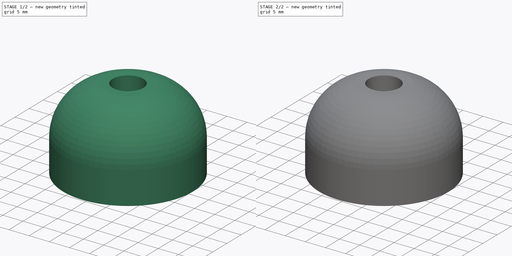
[diagram: build sequence overview — one tinted view per stage of 2, left to right]
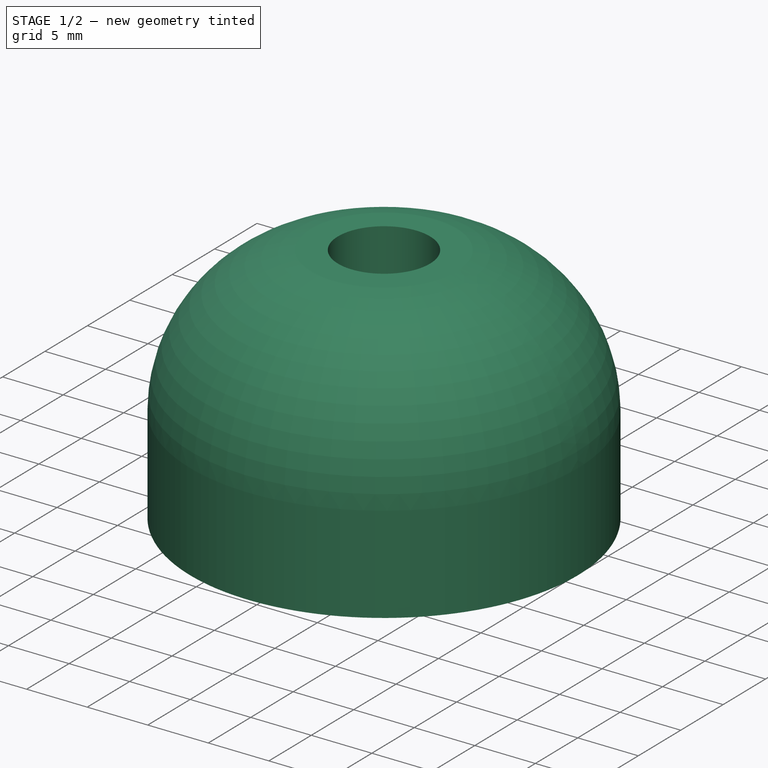
[diagram: stage 1 of 2 — iso view after this stage's code; geometry added in this stage tinted green]
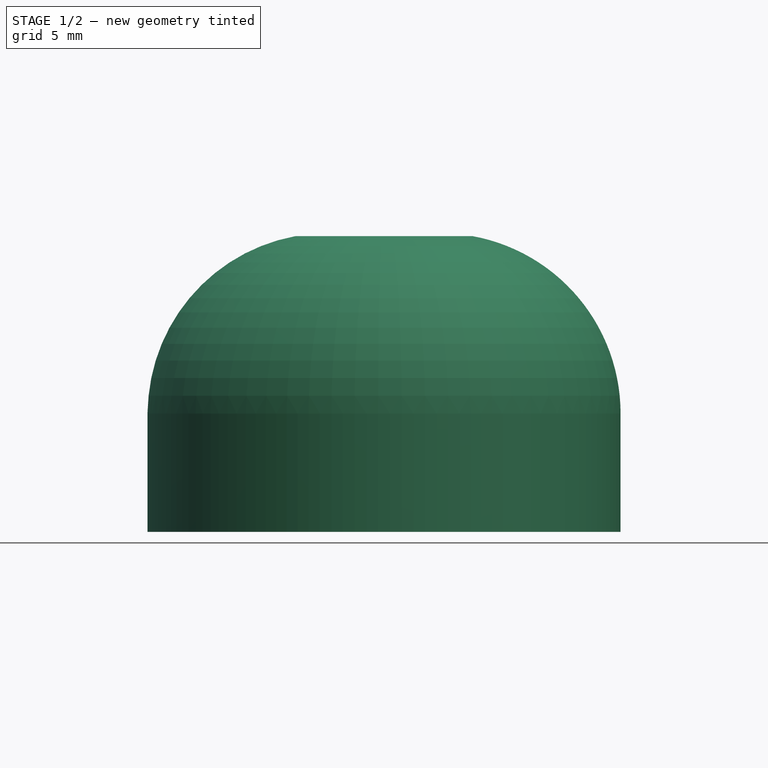
[diagram: stage 1 of 2 — front view after this stage's code; geometry added in this stage tinted green]
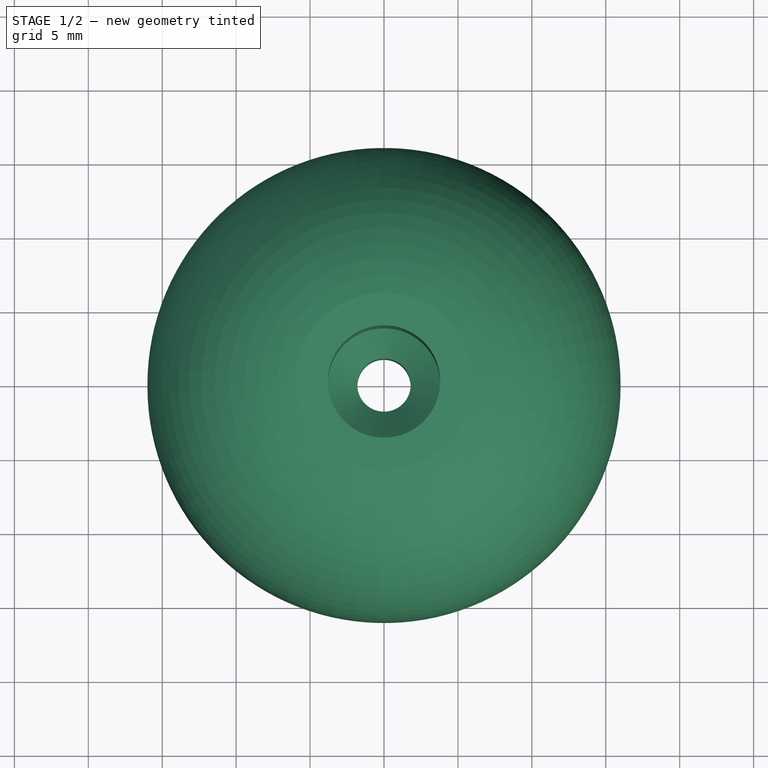
[diagram: stage 1 of 2 — top view after this stage's code; geometry added in this stage tinted green]
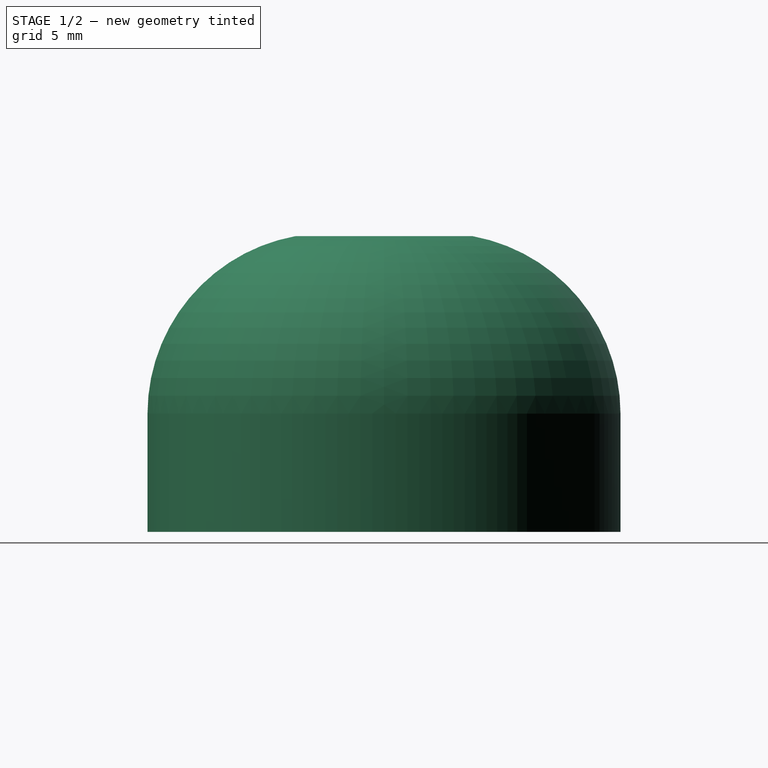
[diagram: stage 1 of 2 — right view after this stage's code; geometry added in this stage tinted green]
FCSTD DOCUMENT  (FreeCAD 0.18.4R)
Label: doorstop2
License: All rights reserved
LicenseURL: http://en.wikipedia.org/wiki/All_rights_reserved
objects: Sketcher::SketchObject×2, PartDesign::Revolution×1, PartDesign::Pad×1, PartDesign::PolarPattern×1, PartDesign::Body×1
note: 8 computed .brp shape members not serialized (recipe doc carries the construction recipe); baked Part::Feature solids carry a one-line shape summary decoded from their .brp

FEATURE [Sketcher::SketchObject] Sketch
  MapMode = 5
  Placement = pos=(0,0,0) rot=(1,0,0;1.5708rad)
  Support = -> [XZ_Plane]
  sketch-geometry (13):
    g0: LineSegment StartX=16 StartY=0 StartZ=0 EndX=16 EndY=8 EndZ=0
    g1: ArcOfCircle CenterX=3.8 CenterY=8 CenterZ=0 NormalX=0 NormalY=0 NormalZ=1 AngleXU=0 Radius=12.2 StartAngle=0 EndAngle=1.38948
    g2: LineSegment StartX=1.8 StartY=6 StartZ=0 EndX=3.8 EndY=8 EndZ=0
    g3: LineSegment StartX=3.8 StartY=8 StartZ=0 EndX=3.8 EndY=20 EndZ=0
    g4: LineSegment StartX=3.8 StartY=20 StartZ=0 EndX=6 EndY=20 EndZ=0
    g5: LineSegment StartX=1.8 StartY=6 StartZ=0 EndX=1.8 EndY=0 EndZ=0
    g6: LineSegment StartX=16 StartY=0 StartZ=0 EndX=14 EndY=0 EndZ=0
    g7: LineSegment StartX=14 StartY=0 StartZ=0 EndX=14 EndY=8 EndZ=0
    g8: LineSegment StartX=1.8 StartY=0 StartZ=0 EndX=3.8 EndY=0 EndZ=0
    g9: LineSegment StartX=3.8 StartY=0 StartZ=0 EndX=3.8 EndY=5.5 EndZ=0
    g10: LineSegment StartX=3.8 StartY=5.5 StartZ=0 EndX=5.5 EndY=7.2 EndZ=0
    g11: LineSegment StartX=5.5 StartY=7.2 StartZ=0 EndX=5.5 EndY=18 EndZ=0
    g12: ArcOfCircle CenterX=3.86765 CenterY=8 CenterZ=0 NormalX=0 NormalY=0 NormalZ=1 AngleXU=0 Radius=10.1324 StartAngle=0 EndAngle=1.40899
  constraints (40):
    c: Vertical(g0)
    c: Tangent(g0,g1) = -1.5708
    c: DistanceX(g-1,g0) = 16
    c: DistanceY(g0,g0) = 8
    c: Coincident(g2,g3)
    c: Vertical(g3)
    c: Coincident(g3,g4)
    c: Coincident(g4,g1)
    c: Horizontal(g4)
    c: DistanceX(g-1,g1) = 6
    c: DistanceX(g-1,g3) = 3.8
    c: Angle(g2) = 0.785398
    c: Coincident(g2,g5)
    c: PointOnObject(g5,g-1)
    c: Vertical(g5)
    c: DistanceX(g-1,g5) = 1.8
    c: DistanceY(g-1,g3) = 20
    c: DistanceY(g5,g5) = 6
    c: Coincident(g0,g6)
    c: PointOnObject(g6,g-1)
    c: Horizontal(g6)
    c: Coincident(g6,g7)
    c: Vertical(g7)
    c: Coincident(g5,g8)
    c: Horizontal(g8)
    c: Coincident(g8,g9)
    c: Vertical(g9)
    c: Coincident(g9,g10)
    c: Coincident(g10,g11)
    c: Vertical(g11)
    c: Coincident(g12,g11)
    c: Coincident(g12,g7)
    c: DistanceX(g8,g8) = 2
    c: DistanceX(g6,g6) = 2
    c: Angle(g10) = 0.785398
    c: DistanceY(g9,g9) = 5.5
    c: DistanceY(g-1,g11) = 18
    c: DistanceY(g7,g7) = 8
    c: DistanceX(g-1,g11) = 5.5
    c: Horizontal(g12,g7)
FEATURE [PartDesign::Revolution] Revolution
  Angle = 360
  Axis = (0,-2e-16,1)
  Base = (0,0,0)
  Placement = pos=(0,0,0) rot=(1,0,0;1.5708rad)
  Profile = -> Sketch
  ReferenceAxis = -> Sketch [V_Axis]
  Refine = true
  Reversed = true
FEATURE [Sketcher::SketchObject] Sketch001
  MapMode = 5
  Placement = pos=(0,0,0) rot=(1,0,0;1.5708rad)
  Support = -> [XZ_Plane]
  sketch-geometry (6):
    g0: LineSegment StartX=14.5 StartY=0 StartZ=0 EndX=14.5 EndY=8 EndZ=0
    g1: LineSegment StartX=3.5 StartY=0 StartZ=0 EndX=3.5 EndY=5.5 EndZ=0
    g2: LineSegment StartX=3.5 StartY=5.5 StartZ=0 EndX=5.5 EndY=7.5 EndZ=0
    g3: LineSegment StartX=5.5 StartY=7.5 StartZ=0 EndX=5.5 EndY=18.5 EndZ=0
    g4: ArcOfCircle CenterX=3.875 CenterY=8 CenterZ=0 NormalX=0 NormalY=0 NormalZ=1 AngleXU=0 Radius=10.625 StartAngle=0 EndAngle=1.41725
    g5: LineSegment StartX=3.5 StartY=0 StartZ=0 EndX=14.5 EndY=0 EndZ=0
  constraints (19):
    c: PointOnObject(g0,g-1)
    c: Vertical(g0)
    c: Vertical(g1)
    c: Coincident(g1,g2)
    c: Coincident(g2,g3)
    c: Vertical(g3)
    c: Coincident(g4,g3)
    c: Coincident(g4,g0)
    c: Angle(g2) = 0.785398
    c: DistanceY(g1,g1) = 5.5
    c: DistanceY(g-1,g3) = 18.5
    c: DistanceY(g0,g0) = 8
    c: DistanceX(g-1,g3) = 5.5
    c: Horizontal(g4,g0)
    c: Coincident(g5,g1)
    c: Coincident(g5,g0)
    c: Horizontal(g5)
    c: DistanceX(g5,g5) = 11
    c: DistanceX(g-1,g1) = 3.5
FEATURE [PartDesign::Pad] Pad
  BaseFeature = -> Revolution
  Length = 1.2
  Length2 = 100
  Midplane = true
  Placement = pos=(0,0,0) rot=(1,0,0;1.5708rad)
  Profile = -> Sketch001
  Refine = true
  Type = 0
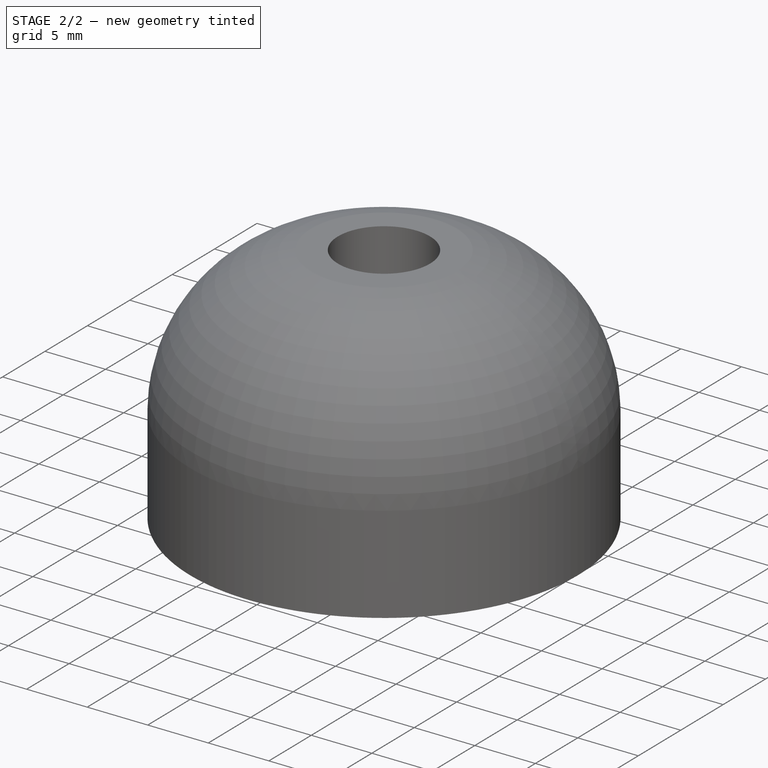
[diagram: stage 2 of 2 — iso view after this stage's code; geometry added in this stage tinted green]
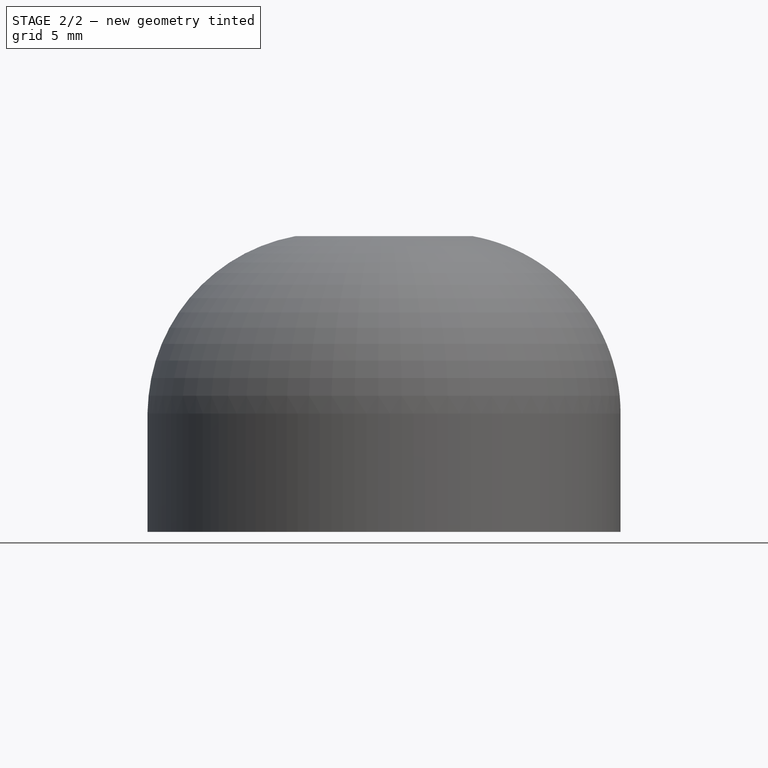
[diagram: stage 2 of 2 — front view after this stage's code; geometry added in this stage tinted green]
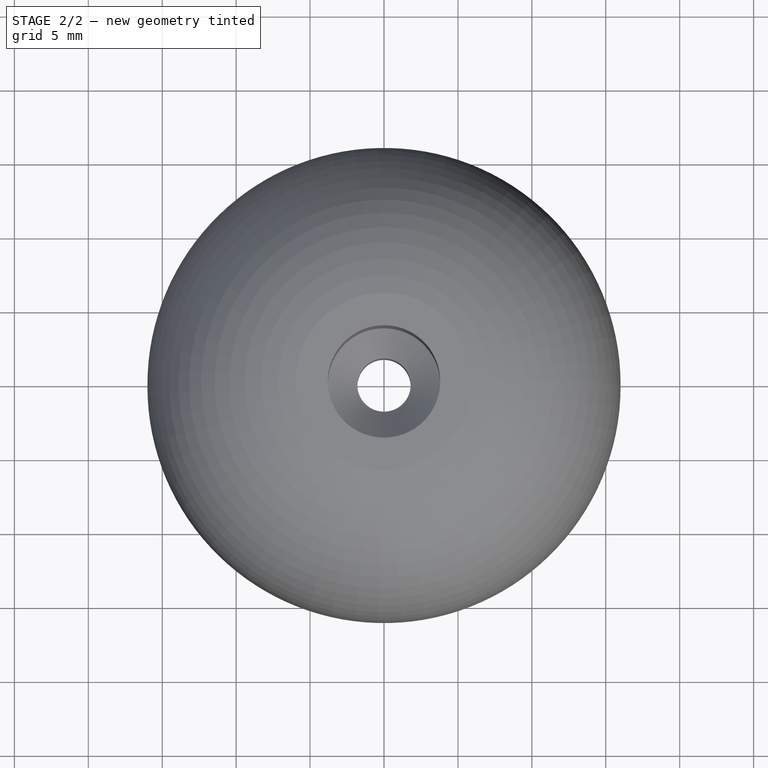
[diagram: stage 2 of 2 — top view after this stage's code; geometry added in this stage tinted green]
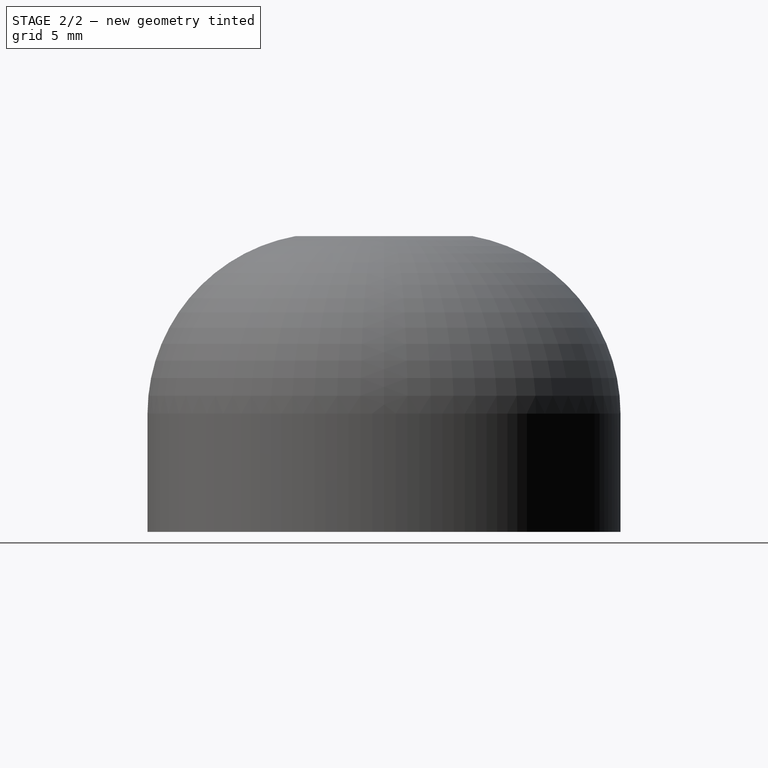
[diagram: stage 2 of 2 — right view after this stage's code; geometry added in this stage tinted green]
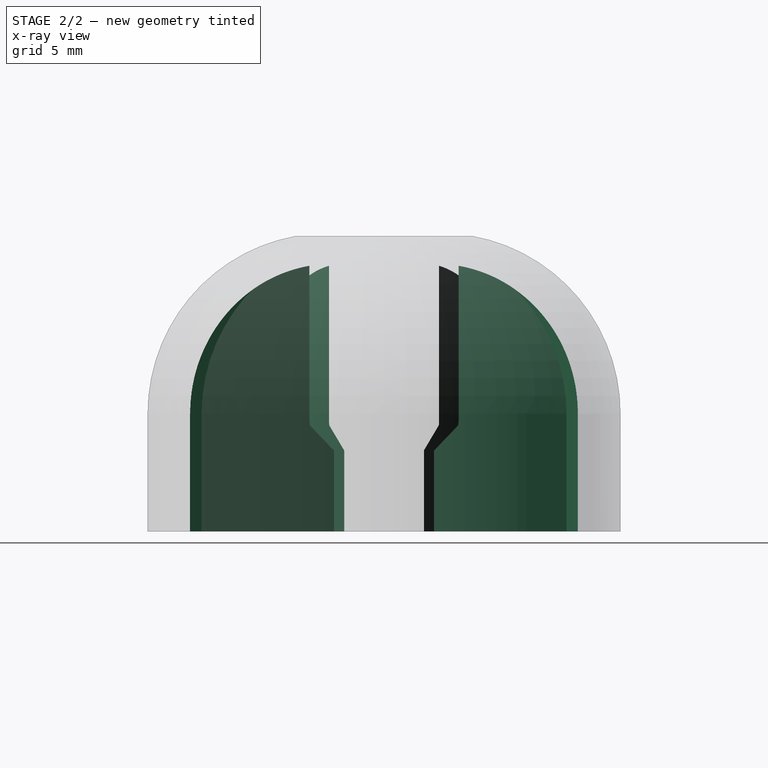
[diagram: stage 2 of 2 — x-ray composite at the right view; earlier geometry ghosted, this stage's added geometry solid]
FEATURE [PartDesign::PolarPattern] PolarPattern
  Angle = 360
  Axis = -> Z_Axis
  BaseFeature = -> Pad
  Occurrences = 5
  Originals = -> [Pad]
  Placement = pos=(0,0,0) rot=(1,0,0;1.5708rad)
  Refine = true
FEATURE [PartDesign::Body] Body
  Group = -> [Sketch,Revolution,Sketch001,Pad,PolarPattern]
  Origin = -> Origin
  Tip = -> PolarPattern
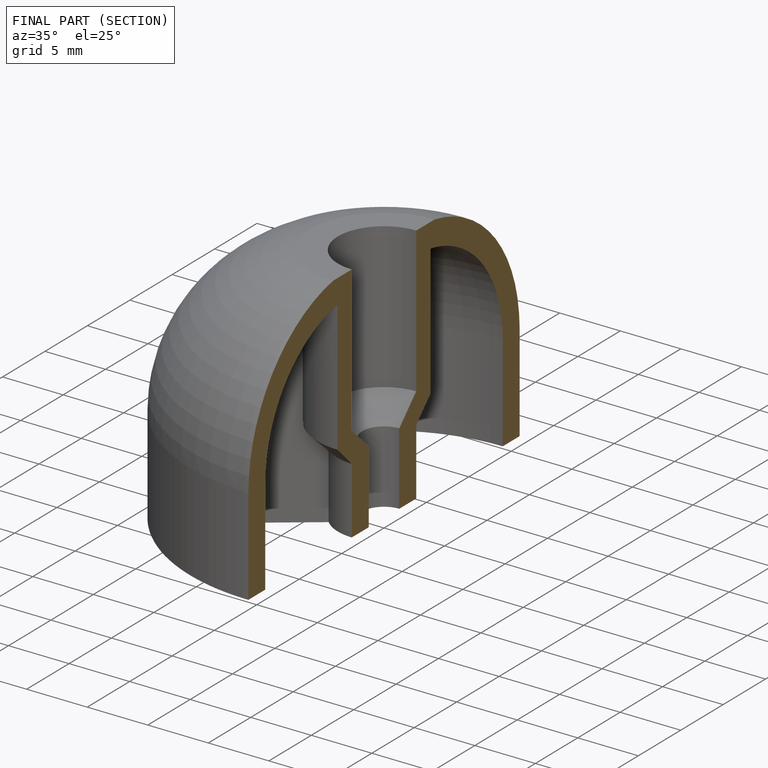
[diagram: finished part — half-section view (interior)]
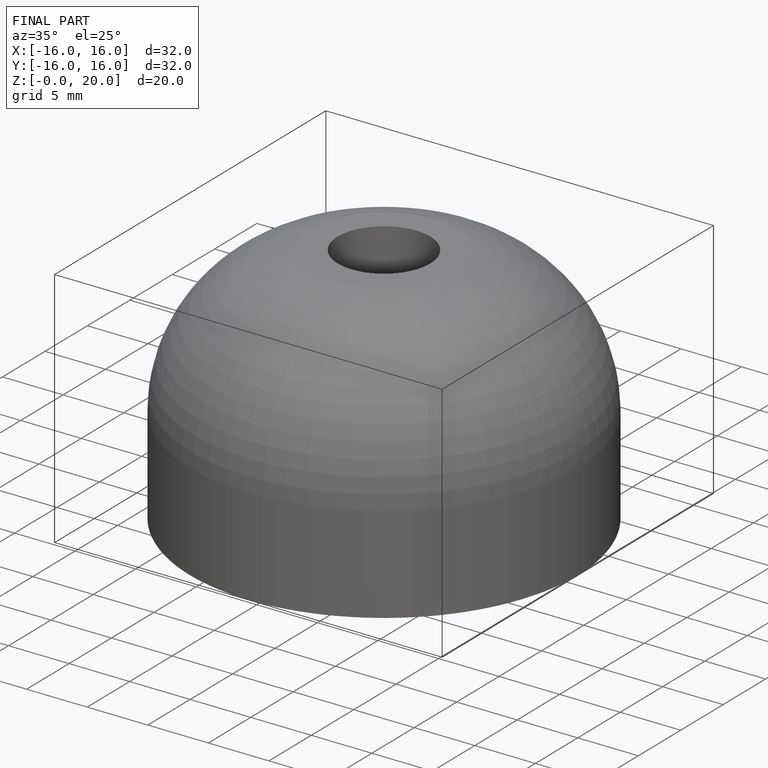
[diagram: finished part — iso view with bounding-box wireframe]
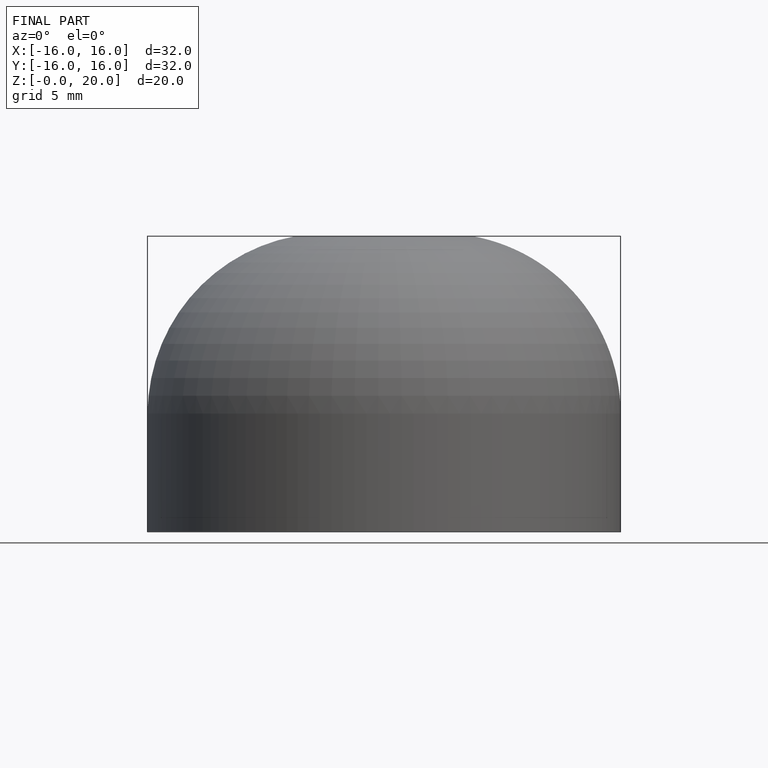
[diagram: finished part — front view with bounding-box wireframe]
